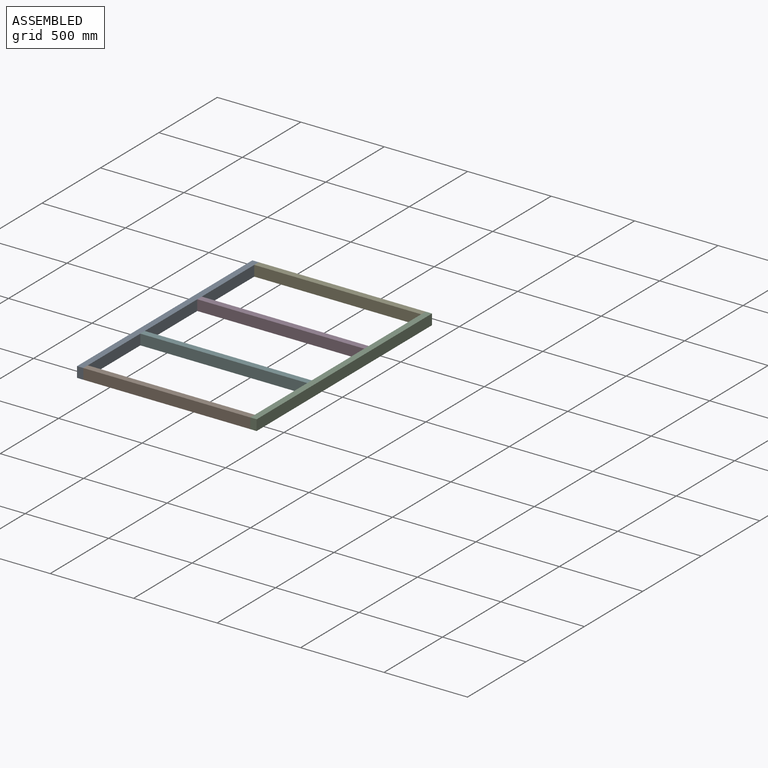
[diagram: assembled view]
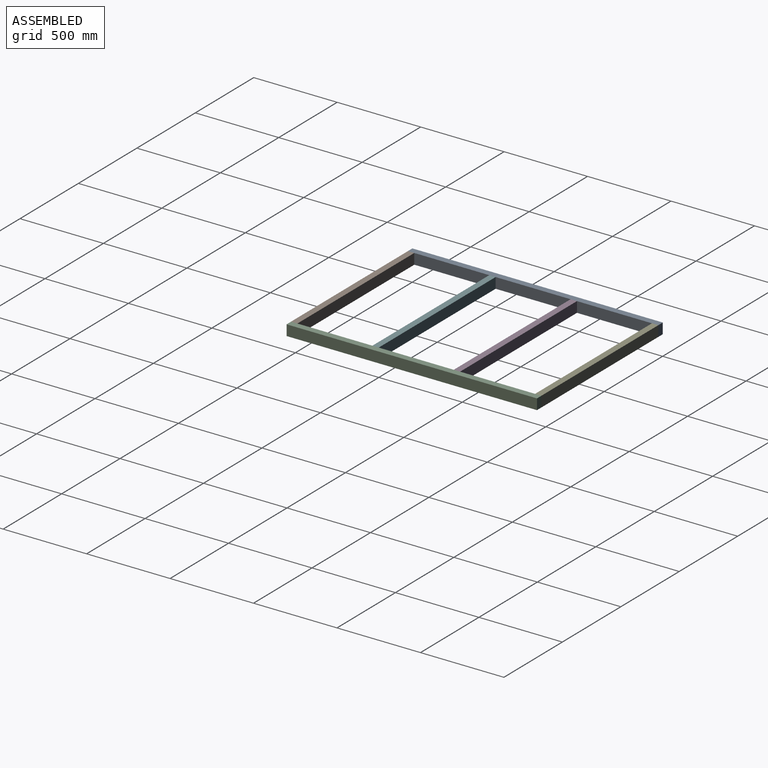
[diagram: assembled view, second angle]
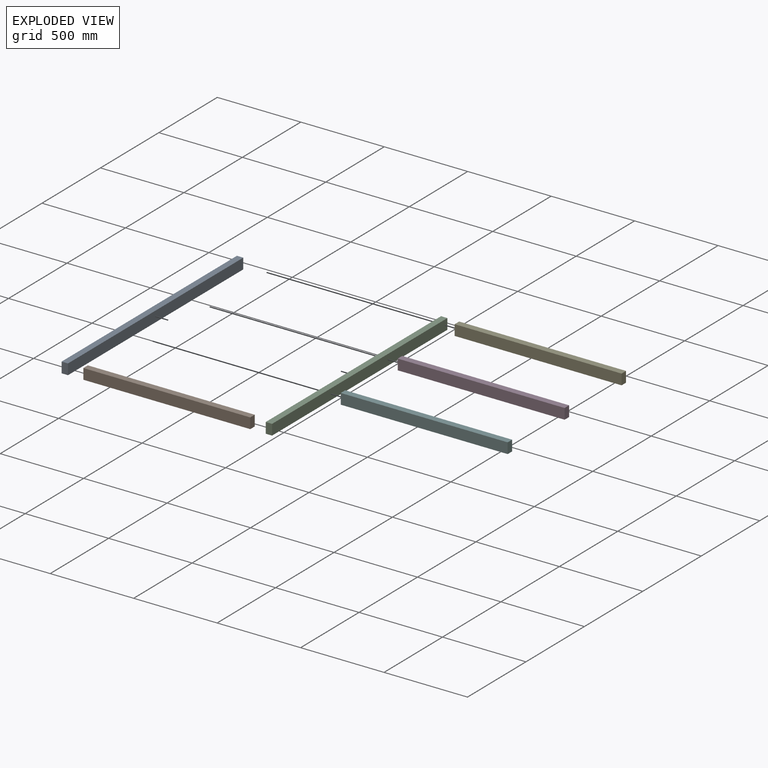
[diagram: exploded view]
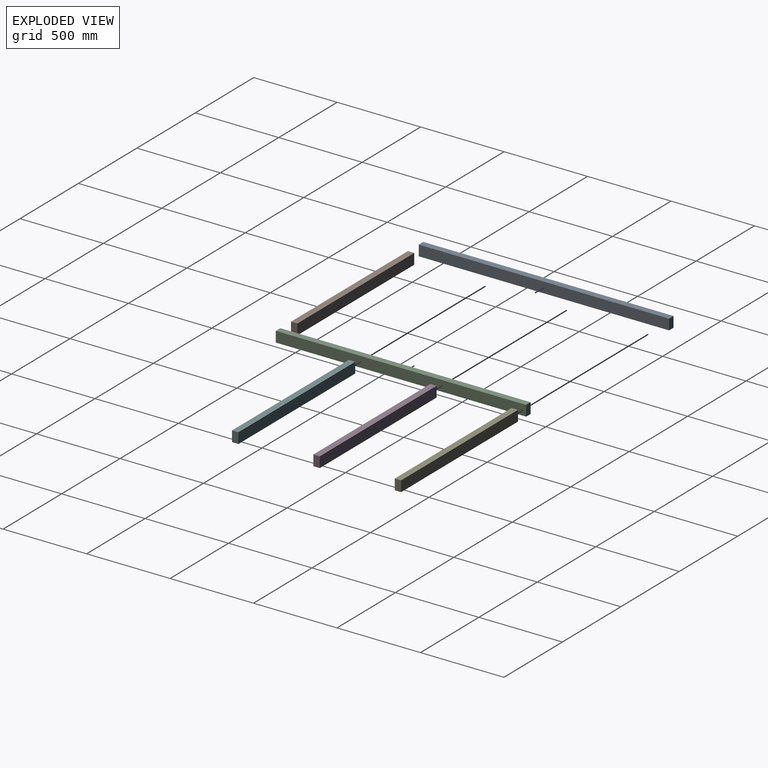
[diagram: exploded view, second angle]
ASSEMBLY  parts=6 mates=2
PART A: 6 faces, bbox 63.5x1500x38.1 mm
  f0: plane 1500x38.1mm, normal (1,0,0), area 57150mm2, adj f1,f3,f4,f5
  f1: plane 1500x63.5mm, normal (0,0,1), area 95250mm2, adj f0,f2,f4,f5
  f2: plane 1500x38.1mm, normal (-1,0,0), area 57150mm2, adj f1,f3,f4,f5
  f3: plane 1500x63.5mm, normal (0,0,-1), area 95250mm2, adj f0,f2,f4,f5
  f4: plane 63.5x38.1mm, normal (0,-1,0), area 2419.3mm2, adj f0,f1,f2,f3
  f5: plane 63.5x38.1mm, normal (0,1,0), area 2419.3mm2, adj f0,f1,f2,f3
PART B: 10 faces, bbox 63.5x1000x38.1 mm
  f0: plane 1000x63.5mm, normal (0,0,1), area 63500mm2, adj f1,f3,f4,f5
  f1: plane 1000x38.1mm, normal (-1,0,0), area 38100mm2, adj f0,f2,f4,f5
  f2: plane 1000x63.5mm, normal (0,0,-1), area 63500mm2, adj f1,f3,f4,f5
  f3: plane 1000x38.1mm, normal (1,0,0), area 38100mm2, adj f0,f2,f4,f5
  f4: plane 63.5x38.1mm, normal (0,-1,0), area 1791mm2, adj f0,f1,f2,f3,f6,f8
  f5: plane 63.5x38.1mm, normal (0,1,0), area 2419.3mm2, adj f0,f1,f2,f3
  f6: cylinder r=10mm len=25mm, axis (0,-1,0), area 1570.8mm2, adj f4,f7
  f7: plane 20x20mm, normal (0,-1,0), area 314.2mm2, adj f6
  f8: cylinder r=10mm len=25mm, axis (0,-1,0), area 1570.8mm2, adj f4,f9
  f9: plane 20x20mm, normal (0,-1,0), area 314.2mm2, adj f8
PART C: same geometry as A
PART D: same geometry as B
PART E: same geometry as B
PART F: same geometry as B
PLACE A rot(axis=(0,-1,0),90deg) t=(-1142.23,388.11,108.68)mm
PLACE B rot(axis=(-0.58,-0.58,-0.58),120deg) t=(-123.18,-1092.84,8.68)mm
PLACE C rot(axis=(0,-1,0),90deg) t=(-104.13,388.11,108.68)mm
PLACE D rot(axis=(-0.58,-0.58,-0.58),120deg) t=(-123.18,-118.24,8.68)mm
PLACE E rot(axis=(-0.58,-0.58,-0.58),120deg) t=(-123.18,369.06,8.68)mm
PLACE F rot(axis=(-0.58,-0.58,-0.58),120deg) t=(-123.18,-605.54,8.68)mm
MATE fastened B.f4 <-> A.f3  axis (-1,0,0) through (-1123.18,-1111.89,140.43)mm
MATE fastened C.f1 <-> B.f5  axis (-1,0,0) through (-123.18,-1111.89,140.43)mm
